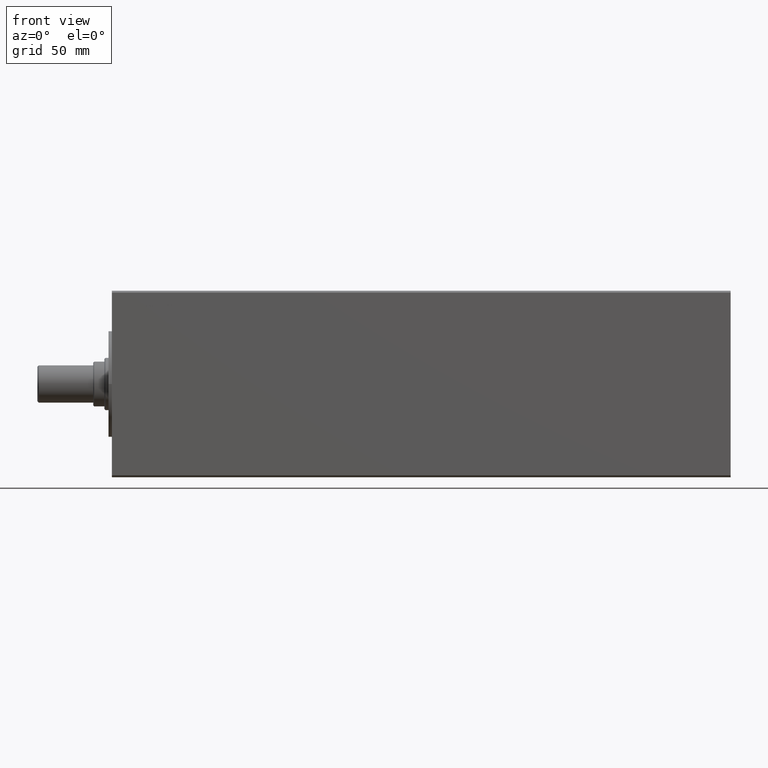
[diagram: clean part render]
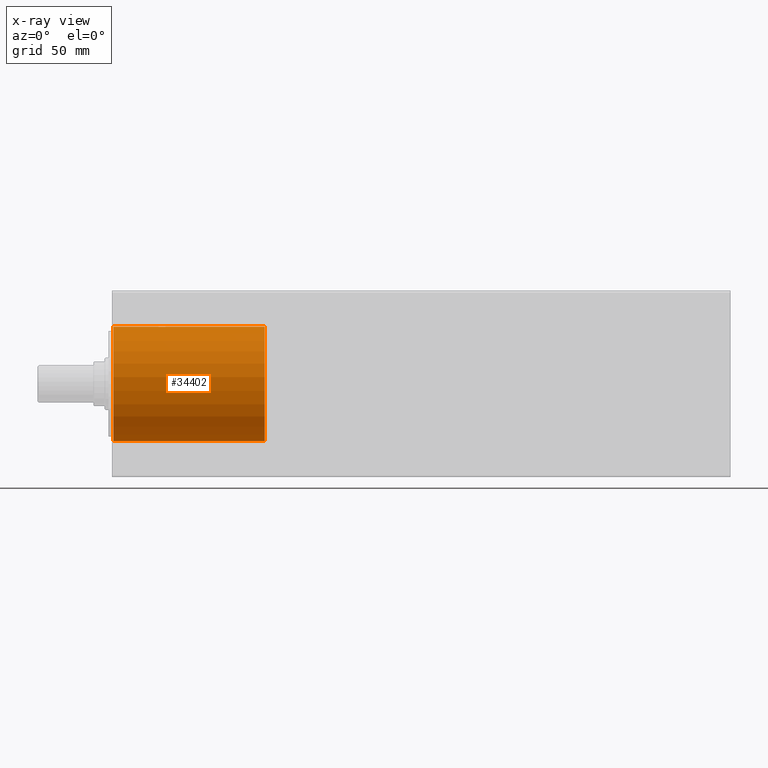
[diagram: x-ray — body ghosted, one internal face saturated and labeled with its STEP entity id]
A machine part, front view, then the same camera in x-ray: the body is ghosted and one INTERNAL B-rep face — a face not visible from any outside direction — is saturated and labeled: STEP entity #34402.
In plain terms, the highlighted cylindrical surface (partial cylindrical patch) has radius 30.75 mm, axis along (-1, -0, -0).
Its self-contained STEP definition (entity closure, byte-faithful):
#389 = CARTESIAN_POINT ( 'NONE',  ( 25.62085498381017956, -2.385948230827390049, 30.65745883554919615 ) ) ;
#613 = CARTESIAN_POINT ( 'NONE',  ( 24.39059867833966067, -0.8863406940441619364, 30.73766931722224882 ) ) ;
#807 = VERTEX_POINT ( 'NONE', #37761 ) ;
#832 = CARTESIAN_POINT ( 'NONE',  ( 25.18077656982038448, -2.070037958520972055, 30.68050838978685491 ) ) ;
#1501 = CARTESIAN_POINT ( 'NONE',  ( 28.81629481965658357, -2.072614221425689518, 30.68033393972072176 ) ) ;
#2335 = B_SPLINE_CURVE_WITH_KNOTS ( 'NONE', 3,
 ( #27713, #14031, #17400, #44323, #613, #34667, #10461, #3755, #31082, #832, #13600, #389, #41817, #7764, #17616, #11112, #10897, #24784, #17846, #27280, #14470, #38463, #10238, #23925, #1501, #36203, #5294, #18949, #38699, #42703, #15135, #28824 ),
 .UNSPECIFIED., .F., .F.,
 ( 4, 2, 2, 2, 2, 2, 2, 2, 2, 2, 2, 2, 2, 2, 2, 4 ),
 ( 0.008602048104389019290, 0.009139550968519939353, 0.009677053832650859416, 0.01021455669678177774, 0.01075205956091269781, 0.01128956242504361787, 0.01182706528917453620, 0.01236456815330545800, 0.01290207101743637633, 0.01343957388156729466, 0.01397707674569821645, 0.01451457960982913478, 0.01505208247396005485, 0.01558958533809097491, 0.01612708820222189671, 0.01720209393048372989 ),
 .UNSPECIFIED. ) ;
#3381 = CARTESIAN_POINT ( 'NONE',  ( 82.00000000000000000, 0.000000000000000000, 0.000000000000000000 ) ) ;
#3755 = CARTESIAN_POINT ( 'NONE',  ( 24.81371920019041610, -1.677911984251271527, 30.70455644953735330 ) ) ;
#3876 = CARTESIAN_POINT ( 'NONE',  ( 0.7000000000000755618, 0.000000000000000000, 30.75000000000000355 ) ) ;
#5004 = ORIENTED_EDGE ( 'NONE', *, *, #15757, .F. ) ;
#5294 = CARTESIAN_POINT ( 'NONE',  ( 29.18394300852268231, -1.680932007892362412, 30.70438972815427903 ) ) ;
#6216 = CARTESIAN_POINT ( 'NONE',  ( 0.7000000000000755618, 0.000000000000000000, 0.000000000000000000 ) ) ;
#6374 = EDGE_CURVE ( 'NONE', #38922, #34652, #21208, .T. ) ;
#6685 = CARTESIAN_POINT ( 'NONE',  ( 82.00000000000000000, 0.000000000000000000, 0.000000000000000000 ) ) ;
#7764 = CARTESIAN_POINT ( 'NONE',  ( 26.11135939426976194, -2.608689688975651233, 30.63922397413195498 ) ) ;
#10041 = FACE_OUTER_BOUND ( 'NONE', #42719, .T. ) ;
#10238 = CARTESIAN_POINT ( 'NONE',  ( 28.37587179320040676, -2.387829894634548644, 30.65731147208039076 ) ) ;
#10461 = CARTESIAN_POINT ( 'NONE',  ( 24.61279207602876085, -1.377116803411753798, 30.71951699977526218 ) ) ;
#10574 = ORIENTED_EDGE ( 'NONE', *, *, #24106, .T. ) ;
#10897 = CARTESIAN_POINT ( 'NONE',  ( 26.81625520683365593, -2.749857075572089471, 30.62679849550514533 ) ) ;
#11112 = CARTESIAN_POINT ( 'NONE',  ( 26.63763697445479650, -2.731906736147716064, 30.62842511588352679 ) ) ;
#11338 = VECTOR ( 'NONE', #26300, 1000.000000000000000 ) ;
#11466 = EDGE_CURVE ( 'NONE', #40236, #38922, #19360, .T. ) ;
#13163 = ORIENTED_EDGE ( 'NONE', *, *, #40455, .F. ) ;
#13600 = CARTESIAN_POINT ( 'NONE',  ( 25.32209645459393244, -2.186190666017790551, 30.67235076718768383 ) ) ;
#14031 = CARTESIAN_POINT ( 'NONE',  ( 24.25000000000000000, -0.1794817023678175749, 30.75000000000001066 ) ) ;
#14470 = CARTESIAN_POINT ( 'NONE',  ( 27.88465254413915417, -2.610058420887896080, 30.63910702770790095 ) ) ;
#15135 = CARTESIAN_POINT ( 'NONE',  ( 29.75000000000000711, -0.3635085658068698544, 30.75000000000001066 ) ) ;
#15757 = EDGE_CURVE ( 'NONE', #20406, #44199, #37262, .T. ) ;
#16019 = CARTESIAN_POINT ( 'NONE',  ( 82.00000000000000000, 0.000000000000000000, 30.75000000000000355 ) ) ;
#16159 = EDGE_CURVE ( 'NONE', #40236, #20406, #37839, .T. ) ;
#17400 = CARTESIAN_POINT ( 'NONE',  ( 24.26740176937791205, -0.3579247250343167708, 30.74842863406703941 ) ) ;
#17616 = CARTESIAN_POINT ( 'NONE',  ( 26.28611788968675000, -2.661765149269605502, 30.63460046719113805 ) ) ;
#17792 = VECTOR ( 'NONE', #43320, 1000.000000000000000 ) ;
#17846 = CARTESIAN_POINT ( 'NONE',  ( 27.35853601447547234, -2.732409650225958497, 30.62837996229691839 ) ) ;
#18949 = CARTESIAN_POINT ( 'NONE',  ( 29.38508426426591313, -1.380765197991048021, 30.71935169337985272 ) ) ;
#19360 = LINE ( 'NONE', #29671, #11338 ) ;
#20116 = DIRECTION ( 'NONE',  ( 0.000000000000000000, 0.000000000000000000, -1.000000000000000000 ) ) ;
#20358 = CYLINDRICAL_SURFACE ( 'NONE', #39999, 30.75000000000000355 ) ;
#20406 = VERTEX_POINT ( 'NONE', #16019 ) ;
#20456 = ORIENTED_EDGE ( 'NONE', *, *, #6374, .T. ) ;
#21208 = CIRCLE ( 'NONE', #36949, 30.75000000000000355 ) ;
#22728 = LINE ( 'NONE', #26078, #40855 ) ;
#23925 = CARTESIAN_POINT ( 'NONE',  ( 28.67474801323325195, -2.188600897652704269, 30.67217801872987337 ) ) ;
#24106 = EDGE_CURVE ( 'NONE', #807, #44199, #2335, .T. ) ;
#24232 = AXIS2_PLACEMENT_3D ( 'NONE', #3381, #34520, #41444 ) ;
#24335 = ORIENTED_EDGE ( 'NONE', *, *, #11466, .T. ) ;
#24784 = CARTESIAN_POINT ( 'NONE',  ( 27.17944146704777708, -2.750141240917158392, 30.62677298011263716 ) ) ;
#26078 = CARTESIAN_POINT ( 'NONE',  ( 82.00000000000000000, 0.000000000000000000, 30.75000000000000355 ) ) ;
#26300 = DIRECTION ( 'NONE',  ( -1.000000000000000000, -0.000000000000000000, -0.000000000000000000 ) ) ;
#26538 = DIRECTION ( 'NONE',  ( -1.000000000000000000, -0.000000000000000000, -0.000000000000000000 ) ) ;
#27280 = CARTESIAN_POINT ( 'NONE',  ( 27.71009460311966777, -2.662776037323495437, 30.63451232493402543 ) ) ;
#27713 = CARTESIAN_POINT ( 'NONE',  ( 24.24999999999999645, -1.738333890745021614E-23, 30.75000000000000355 ) ) ;
#27909 = CARTESIAN_POINT ( 'NONE',  ( 82.00000000000000000, 3.765788907378111328E-15, -30.75000000000000355 ) ) ;
#28221 = CARTESIAN_POINT ( 'NONE',  ( 0.7000000000000755618, 3.765788907378111328E-15, -30.75000000000000355 ) ) ;
#28824 = CARTESIAN_POINT ( 'NONE',  ( 29.75000000000000355, -1.215633135891748702E-15, 30.75000000000000355 ) ) ;
#29554 = DIRECTION ( 'NONE',  ( 0.000000000000000000, 0.000000000000000000, 1.000000000000000000 ) ) ;
#29671 = CARTESIAN_POINT ( 'NONE',  ( 82.00000000000000000, 3.765788907378111328E-15, -30.75000000000000355 ) ) ;
#31082 = CARTESIAN_POINT ( 'NONE',  ( 24.92745199001636536, -1.816363340564058682, 30.69657108571826143 ) ) ;
#33472 = CARTESIAN_POINT ( 'NONE',  ( 82.00000000000000000, 0.000000000000000000, 30.75000000000000355 ) ) ;
#34035 = DIRECTION ( 'NONE',  ( -1.000000000000000000, -0.000000000000000000, -0.000000000000000000 ) ) ;
#34402 = ADVANCED_FACE ( 'NONE', ( #10041 ), #20358, .F. ) ;
#34520 = DIRECTION ( 'NONE',  ( -1.000000000000000000, 0.000000000000000000, 0.000000000000000000 ) ) ;
#34652 = VERTEX_POINT ( 'NONE', #3876 ) ;
#34667 = CARTESIAN_POINT ( 'NONE',  ( 24.52759909259038551, -1.217295706244574394, 30.72634221713322233 ) ) ;
#36203 = CARTESIAN_POINT ( 'NONE',  ( 29.07007246783628673, -1.819191183101305009, 30.69640310855592702 ) ) ;
#36949 = AXIS2_PLACEMENT_3D ( 'NONE', #6216, #40934, #20116 ) ;
#37262 = LINE ( 'NONE', #33472, #17792 ) ;
#37761 = CARTESIAN_POINT ( 'NONE',  ( 24.24999999999999645, -1.738333890745021614E-23, 30.75000000000000355 ) ) ;
#37839 = CIRCLE ( 'NONE', #24232, 30.75000000000000355 ) ;
#38463 = CARTESIAN_POINT ( 'NONE',  ( 28.21789924948238237, -2.472192650747498721, 30.65053911293205147 ) ) ;
#38600 = ORIENTED_EDGE ( 'NONE', *, *, #16159, .F. ) ;
#38699 = CARTESIAN_POINT ( 'NONE',  ( 29.47070940530729644, -1.220721238847502832, 30.72620566675838560 ) ) ;
#38922 = VERTEX_POINT ( 'NONE', #28221 ) ;
#39462 = CARTESIAN_POINT ( 'NONE',  ( 29.75000000000000355, -1.215633135891748702E-15, 30.75000000000000355 ) ) ;
#39999 = AXIS2_PLACEMENT_3D ( 'NONE', #6685, #34035, #29554 ) ;
#40236 = VERTEX_POINT ( 'NONE', #27909 ) ;
#40455 = EDGE_CURVE ( 'NONE', #807, #34652, #22728, .T. ) ;
#40855 = VECTOR ( 'NONE', #26538, 1000.000000000000000 ) ;
#40934 = DIRECTION ( 'NONE',  ( -1.000000000000000000, 0.000000000000000000, 0.000000000000000000 ) ) ;
#41444 = DIRECTION ( 'NONE',  ( 0.000000000000000000, 0.000000000000000000, 1.000000000000000000 ) ) ;
#41817 = CARTESIAN_POINT ( 'NONE',  ( 25.77867827891837393, -2.470489278085352680, 30.65067683359138329 ) ) ;
#42703 = CARTESIAN_POINT ( 'NONE',  ( 29.67687151508042476, -0.7246517270662085064, 30.74324120762305412 ) ) ;
#42719 = EDGE_LOOP ( 'NONE', ( #38600, #24335, #20456, #13163, #10574, #5004 ) ) ;
#43320 = DIRECTION ( 'NONE',  ( -1.000000000000000000, -0.000000000000000000, -0.000000000000000000 ) ) ;
#44199 = VERTEX_POINT ( 'NONE', #39462 ) ;
#44323 = CARTESIAN_POINT ( 'NONE',  ( 24.33780528453582193, -0.7126868146279321525, 30.74225188689599264 ) ) ;